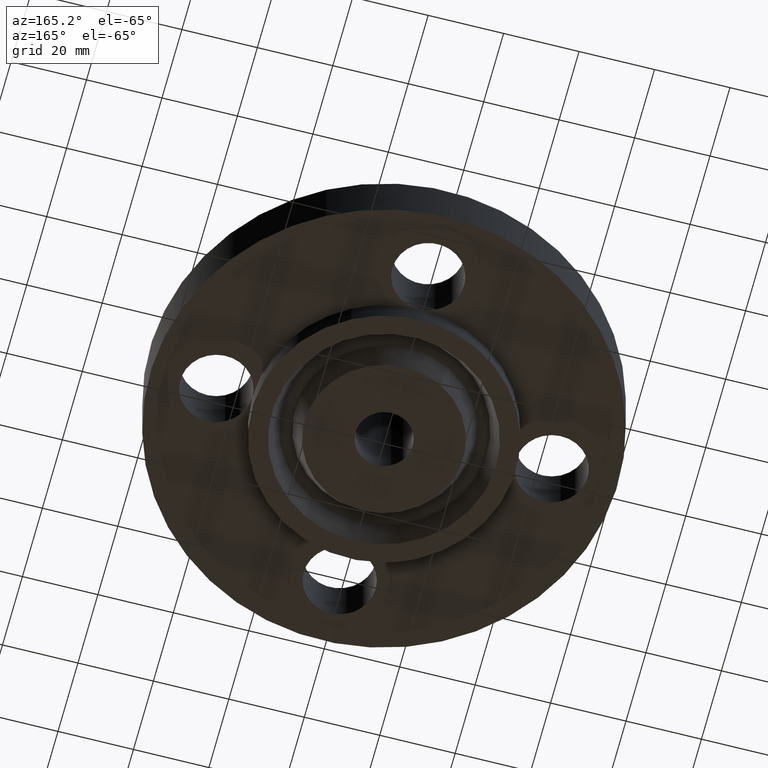
[diagram: clean part render]
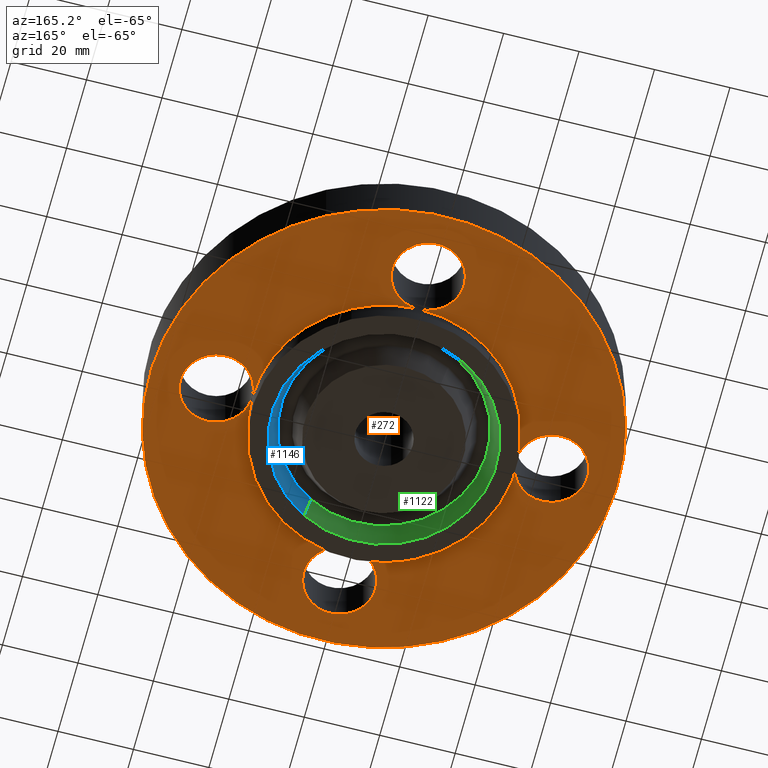
[diagram: same view with three faces highlighted in distinct colors, each labeled with its STEP entity id]
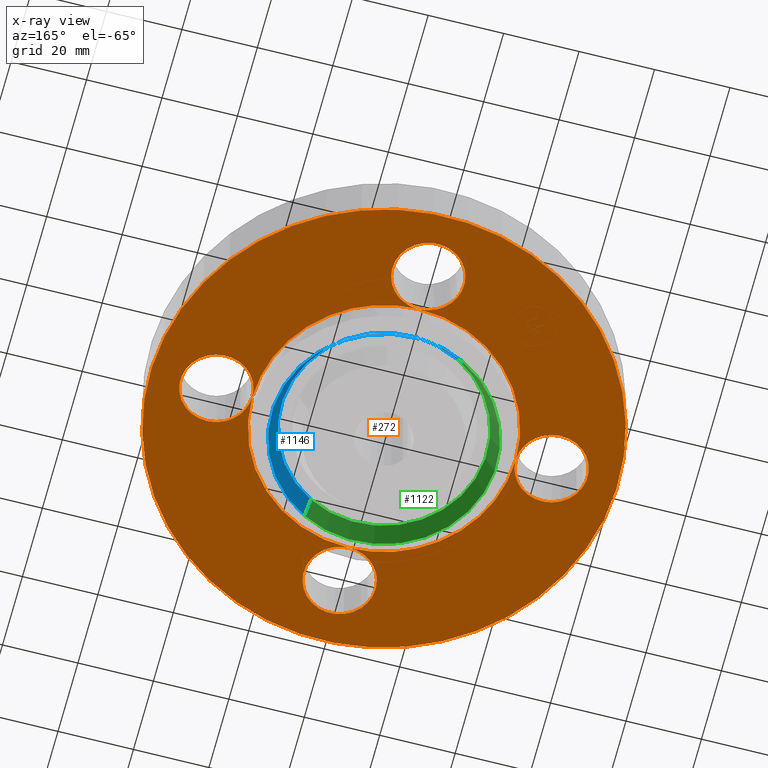
[diagram: x-ray of the same camera — body ghosted, the three highlighted faces saturated]
A machine part, auxiliary view with three faces highlighted in distinct colors.
The next image is the same camera in x-ray (body ghosted, the three faces saturated) — at least one of them is partly hidden behind the body in this view.
Their STEP definitions:

[orange] entity #272 — the highlighted planar face has unit normal (0, 0, -1).
#51=AXIS2_PLACEMENT_3D('Circle Axis2P3D',#49,#50,$) ;
#102=AXIS2_PLACEMENT_3D('Circle Axis2P3D',#100,#101,$) ;
#109=AXIS2_PLACEMENT_3D('Circle Axis2P3D',#107,#108,$) ;
#135=AXIS2_PLACEMENT_3D('Plane Axis2P3D',#132,#133,#134) ;
#139=AXIS2_PLACEMENT_3D('Circle Axis2P3D',#137,#138,$) ;
#148=AXIS2_PLACEMENT_3D('Circle Axis2P3D',#146,#147,$) ;
#157=AXIS2_PLACEMENT_3D('Circle Axis2P3D',#155,#156,$) ;
#166=AXIS2_PLACEMENT_3D('Circle Axis2P3D',#164,#165,$) ;
#173=AXIS2_PLACEMENT_3D('Circle Axis2P3D',#171,#172,$) ;
#178=AXIS2_PLACEMENT_3D('Circle Axis2P3D',#176,#177,$) ;
#185=AXIS2_PLACEMENT_3D('Circle Axis2P3D',#183,#184,$) ;
#192=AXIS2_PLACEMENT_3D('Circle Axis2P3D',#190,#191,$) ;
#199=AXIS2_PLACEMENT_3D('Circle Axis2P3D',#197,#198,$) ;
#204=AXIS2_PLACEMENT_3D('Circle Axis2P3D',#202,#203,$) ;
#211=AXIS2_PLACEMENT_3D('Circle Axis2P3D',#209,#210,$) ;
#216=AXIS2_PLACEMENT_3D('Circle Axis2P3D',#214,#215,$) ;
#223=AXIS2_PLACEMENT_3D('Circle Axis2P3D',#221,#222,$) ;
#230=AXIS2_PLACEMENT_3D('Circle Axis2P3D',#228,#229,$) ;
#237=AXIS2_PLACEMENT_3D('Circle Axis2P3D',#235,#236,$) ;
#242=AXIS2_PLACEMENT_3D('Circle Axis2P3D',#240,#241,$) ;
#249=AXIS2_PLACEMENT_3D('Circle Axis2P3D',#247,#248,$) ;
#44=CARTESIAN_POINT('Vertex',(-0.32909346071,1.92978457699,0.)) ;
#49=CARTESIAN_POINT('Axis2P3D Location',(0.,1.75000000001,0.)) ;
#53=CARTESIAN_POINT('Vertex',(0.32909346071,1.57021542303,2.55543617763E-013)) ;
#100=CARTESIAN_POINT('Axis2P3D Location',(0.,1.75000000001,2.55543617763E-013)) ;
#104=CARTESIAN_POINT('Vertex',(-5.45495407375E-015,1.37500000001,2.55543617763E-013)) ;
#107=CARTESIAN_POINT('Axis2P3D Location',(0.,1.75000000001,2.55543617763E-013)) ;
#132=CARTESIAN_POINT('Axis2P3D Location',(0.,1.37500000001,0.)) ;
#137=CARTESIAN_POINT('Axis2P3D Location',(-8.39223703654E-016,-1.93331964611E-011,0.)) ;
#141=CARTESIAN_POINT('Vertex',(-1.1697983142,-2.14130145102,-3.57865967831E-011)) ;
#143=CARTESIAN_POINT('Vertex',(1.1697983142,2.14130145102,-3.57865967831E-011)) ;
#146=CARTESIAN_POINT('Axis2P3D Location',(8.39223703654E-016,-1.93326369786E-011,0.)) ;
#155=CARTESIAN_POINT('Axis2P3D Location',(4.51559699519E-011,-1.75000000002,0.)) ;
#159=CARTESIAN_POINT('Vertex',(-0.329093460698,-1.57021542302,0.)) ;
#161=CARTESIAN_POINT('Vertex',(6.99353086378E-016,-1.37500000001,-3.57865967831E-011)) ;
#164=CARTESIAN_POINT('Axis2P3D Location',(1.74838271595E-017,-1.74999999999,0.)) ;
#168=CARTESIAN_POINT('Vertex',(0.329093460698,-1.92978457696,0.)) ;
#171=CARTESIAN_POINT('Axis2P3D Location',(-1.8883967006E-011,-1.74999999998,0.)) ;
#176=CARTESIAN_POINT('Axis2P3D Location',(1.27493186612E-010,-7.34938968825E-011,0.)) ;
#180=CARTESIAN_POINT('Vertex',(1.37500000001,-5.59482469102E-016,-3.57865967831E-011)) ;
#183=CARTESIAN_POINT('Axis2P3D Location',(1.7500000002,6.02789209623E-011,0.)) ;
#187=CARTESIAN_POINT('Vertex',(1.570215423,-0.329093460717,0.)) ;
#190=CARTESIAN_POINT('Axis2P3D Location',(1.75000000002,-2.63320424083E-011,0.)) ;
#194=CARTESIAN_POINT('Vertex',(1.92978457702,0.329093460678,0.)) ;
#197=CARTESIAN_POINT('Axis2P3D Location',(1.75,2.74764637989E-011,0.)) ;
#202=CARTESIAN_POINT('Axis2P3D Location',(-1.36906898766E-010,-8.43279951555E-011,0.)) ;
#206=CARTESIAN_POINT('Vertex',(0.659210115586,1.20667602261,-3.57865967831E-011)) ;
#209=CARTESIAN_POINT('Axis2P3D Location',(-3.10233798406E-010,-1.35056326577E-009,0.)) ;
#214=CARTESIAN_POINT('Axis2P3D Location',(-2.30758544381E-012,-1.70256110173E-011,0.)) ;
#218=CARTESIAN_POINT('Vertex',(-1.37500000001,3.49676543189E-016,-3.57865967831E-011)) ;
#221=CARTESIAN_POINT('Axis2P3D Location',(-1.74999999997,3.74584702713E-011,0.)) ;
#225=CARTESIAN_POINT('Vertex',(-1.570215423,0.329093460678,0.)) ;
#228=CARTESIAN_POINT('Axis2P3D Location',(-1.75000000002,-1.23337910314E-011,0.)) ;
#232=CARTESIAN_POINT('Vertex',(-1.92978457702,-0.329093460717,0.)) ;
#235=CARTESIAN_POINT('Axis2P3D Location',(-1.75,-6.61422972385E-011,0.)) ;
#240=CARTESIAN_POINT('Axis2P3D Location',(1.36907318378E-010,1.18995207388E-010,0.)) ;
#244=CARTESIAN_POINT('Vertex',(-0.659210115586,-1.20667602261,-3.57865967831E-011)) ;
#247=CARTESIAN_POINT('Axis2P3D Location',(-2.55224747723E-010,-8.29285616555E-010,0.)) ;
#50=DIRECTION('Axis2P3D Direction',(0.,-0.,-0.0393700787402)) ;
#101=DIRECTION('Axis2P3D Direction',(0.,-0.,-0.0393700787402)) ;
#108=DIRECTION('Axis2P3D Direction',(0.,-0.,-0.0393700787402)) ;
#133=DIRECTION('Axis2P3D Direction',(0.,0.,-0.0393700787402)) ;
#134=DIRECTION('Axis2P3D XDirection',(0.0393700787402,0.,0.)) ;
#138=DIRECTION('Axis2P3D Direction',(0.,0.,-0.0393700787402)) ;
#147=DIRECTION('Axis2P3D Direction',(0.,0.,-0.0393700787402)) ;
#156=DIRECTION('Axis2P3D Direction',(0.,0.,-0.0393700787402)) ;
#165=DIRECTION('Axis2P3D Direction',(0.,0.,-0.0393700787402)) ;
#172=DIRECTION('Axis2P3D Direction',(0.,0.,-0.0393700787402)) ;
#177=DIRECTION('Axis2P3D Direction',(0.,0.,-0.0393700787402)) ;
#184=DIRECTION('Axis2P3D Direction',(0.,0.,-0.0393700787402)) ;
#191=DIRECTION('Axis2P3D Direction',(0.,0.,-0.0393700787402)) ;
#198=DIRECTION('Axis2P3D Direction',(0.,0.,-0.0393700787402)) ;
#203=DIRECTION('Axis2P3D Direction',(0.,0.,-0.0393700787402)) ;
#210=DIRECTION('Axis2P3D Direction',(0.,0.,-0.0393700787402)) ;
#215=DIRECTION('Axis2P3D Direction',(0.,0.,-0.0393700787402)) ;
#222=DIRECTION('Axis2P3D Direction',(0.,0.,-0.0393700787402)) ;
#229=DIRECTION('Axis2P3D Direction',(0.,0.,-0.0393700787402)) ;
#236=DIRECTION('Axis2P3D Direction',(0.,0.,-0.0393700787402)) ;
#241=DIRECTION('Axis2P3D Direction',(0.,0.,-0.0393700787402)) ;
#248=DIRECTION('Axis2P3D Direction',(0.,0.,-0.0393700787402)) ;
#152=ORIENTED_EDGE('',*,*,#145,.T.) ;
#153=ORIENTED_EDGE('',*,*,#150,.T.) ;
#253=ORIENTED_EDGE('',*,*,#163,.F.) ;
#254=ORIENTED_EDGE('',*,*,#170,.F.) ;
#255=ORIENTED_EDGE('',*,*,#175,.F.) ;
#256=ORIENTED_EDGE('',*,*,#182,.F.) ;
#257=ORIENTED_EDGE('',*,*,#189,.F.) ;
#258=ORIENTED_EDGE('',*,*,#196,.F.) ;
#259=ORIENTED_EDGE('',*,*,#201,.F.) ;
#260=ORIENTED_EDGE('',*,*,#208,.F.) ;
#261=ORIENTED_EDGE('',*,*,#213,.F.) ;
#262=ORIENTED_EDGE('',*,*,#106,.F.) ;
#263=ORIENTED_EDGE('',*,*,#55,.F.) ;
#264=ORIENTED_EDGE('',*,*,#111,.F.) ;
#265=ORIENTED_EDGE('',*,*,#220,.F.) ;
#266=ORIENTED_EDGE('',*,*,#227,.F.) ;
#267=ORIENTED_EDGE('',*,*,#234,.F.) ;
#268=ORIENTED_EDGE('',*,*,#239,.F.) ;
#269=ORIENTED_EDGE('',*,*,#246,.F.) ;
#270=ORIENTED_EDGE('',*,*,#251,.F.) ;
#271=FACE_BOUND('',#252,.T.) ;
#272=ADVANCED_FACE('PartBody',(#154,#271),#136,.T.) ;
#52=CIRCLE('generated circle',#51,0.375000000001) ;
#103=CIRCLE('generated circle',#102,0.375000000001) ;
#110=CIRCLE('generated circle',#109,0.375000000001) ;
#140=CIRCLE('generated circle',#139,2.44) ;
#149=CIRCLE('generated circle',#148,2.44) ;
#158=CIRCLE('generated circle',#157,0.37500000004) ;
#167=CIRCLE('generated circle',#166,0.374999999988) ;
#174=CIRCLE('generated circle',#173,0.375000000008) ;
#179=CIRCLE('generated circle',#178,1.3749999999) ;
#186=CIRCLE('generated circle',#185,0.375000000166) ;
#193=CIRCLE('generated circle',#192,0.375000000006) ;
#200=CIRCLE('generated circle',#199,0.374999999969) ;
#205=CIRCLE('generated circle',#204,1.37500000017) ;
#212=CIRCLE('generated circle',#211,1.37500000136) ;
#217=CIRCLE('generated circle',#216,1.37500000003) ;
#224=CIRCLE('generated circle',#223,0.374999999936) ;
#231=CIRCLE('generated circle',#230,0.375000000006) ;
#238=CIRCLE('generated circle',#237,0.374999999969) ;
#243=CIRCLE('generated circle',#242,1.37500000017) ;
#250=CIRCLE('generated circle',#249,1.37499999915) ;
#55=EDGE_CURVE('',#45,#54,#52,.T.) ;
#106=EDGE_CURVE('',#54,#105,#103,.T.) ;
#111=EDGE_CURVE('',#105,#45,#110,.T.) ;
#145=EDGE_CURVE('',#142,#144,#140,.T.) ;
#150=EDGE_CURVE('',#144,#142,#149,.T.) ;
#163=EDGE_CURVE('',#160,#162,#158,.T.) ;
#170=EDGE_CURVE('',#169,#160,#167,.T.) ;
#175=EDGE_CURVE('',#162,#169,#174,.T.) ;
#182=EDGE_CURVE('',#181,#162,#179,.T.) ;
#189=EDGE_CURVE('',#188,#181,#186,.T.) ;
#196=EDGE_CURVE('',#195,#188,#193,.T.) ;
#201=EDGE_CURVE('',#181,#195,#200,.T.) ;
#208=EDGE_CURVE('',#207,#181,#205,.T.) ;
#213=EDGE_CURVE('',#105,#207,#212,.T.) ;
#220=EDGE_CURVE('',#219,#105,#217,.T.) ;
#227=EDGE_CURVE('',#226,#219,#224,.T.) ;
#234=EDGE_CURVE('',#233,#226,#231,.T.) ;
#239=EDGE_CURVE('',#219,#233,#238,.T.) ;
#246=EDGE_CURVE('',#245,#219,#243,.T.) ;
#251=EDGE_CURVE('',#162,#245,#250,.T.) ;
#151=EDGE_LOOP('',(#152,#153)) ;
#252=EDGE_LOOP('',(#253,#254,#255,#256,#257,#258,#259,#260,#261,#262,#263,#264,#265,#266,#267,#268,#269,#270)) ;
#154=FACE_OUTER_BOUND('',#151,.T.) ;
#136=PLANE('',#135) ;
#45=VERTEX_POINT('',#44) ;
#54=VERTEX_POINT('',#53) ;
#105=VERTEX_POINT('',#104) ;
#142=VERTEX_POINT('',#141) ;
#144=VERTEX_POINT('',#143) ;
#160=VERTEX_POINT('',#159) ;
#162=VERTEX_POINT('',#161) ;
#169=VERTEX_POINT('',#168) ;
#181=VERTEX_POINT('',#180) ;
#188=VERTEX_POINT('',#187) ;
#195=VERTEX_POINT('',#194) ;
#207=VERTEX_POINT('',#206) ;
#219=VERTEX_POINT('',#218) ;
#226=VERTEX_POINT('',#225) ;
#233=VERTEX_POINT('',#232) ;
#245=VERTEX_POINT('',#244) ;

[blue] entity #1146 — the highlighted conical surface has half-angle 23 deg.
#836=AXIS2_PLACEMENT_3D('Circle Axis2P3D',#834,#835,$) ;
#1133=AXIS2_PLACEMENT_3D('Cone Axis2P3D',#1130,#1131,#1132) ;
#1137=AXIS2_PLACEMENT_3D('Circle Axis2P3D',#1135,#1136,$) ;
#829=CARTESIAN_POINT('Vertex',(0.561886731257,-1.02852676255,-0.250000000001)) ;
#831=CARTESIAN_POINT('Vertex',(-0.561886731257,1.02852676253,-0.250000000001)) ;
#834=CARTESIAN_POINT('Axis2P3D Location',(-3.49676543189E-017,-9.442490534E-012,-0.250000000001)) ;
#1097=CARTESIAN_POINT('Line Origine',(-0.538370547572,0.985480677062,-0.134443667512)) ;
#1101=CARTESIAN_POINT('Vertex',(-0.514854363896,0.942434591581,-0.0188873350186)) ;
#1108=CARTESIAN_POINT('Vertex',(0.514854363896,-0.942434591581,-0.0188873350179)) ;
#1111=CARTESIAN_POINT('Line Origine',(0.538370547572,-0.985480677062,-0.134443667512)) ;
#1130=CARTESIAN_POINT('Axis2P3D Location',(0.,0.,-0.0188873350169)) ;
#1135=CARTESIAN_POINT('Axis2P3D Location',(0.,0.,-0.0188873350169)) ;
#835=DIRECTION('Axis2P3D Direction',(0.,0.,-0.0393700787402)) ;
#1098=DIRECTION('Vector Direction',(-0.00737505833566,0.0134999537303,-0.0362403485611)) ;
#1112=DIRECTION('Vector Direction',(0.00737505833566,-0.0134999537303,-0.0362403485611)) ;
#1131=DIRECTION('Axis2P3D Direction',(-0.,-0.,-0.0393700787402)) ;
#1132=DIRECTION('Axis2P3D XDirection',(-0.0188750212049,0.0345504945626,0.)) ;
#1136=DIRECTION('Axis2P3D Direction',(-0.,0.,-0.0393700787402)) ;
#1099=VECTOR('Line Direction',#1098,0.0393700787402) ;
#1113=VECTOR('Line Direction',#1112,0.0393700787402) ;
#1141=ORIENTED_EDGE('',*,*,#838,.T.) ;
#1142=ORIENTED_EDGE('',*,*,#1115,.T.) ;
#1143=ORIENTED_EDGE('',*,*,#1139,.T.) ;
#1144=ORIENTED_EDGE('',*,*,#1103,.F.) ;
#1146=ADVANCED_FACE('PartBody',(#1145),#1134,.F.) ;
#837=CIRCLE('generated circle',#836,1.17200000001) ;
#1138=CIRCLE('generated circle',#1137,1.07389849401) ;
#1134=CONICAL_SURFACE('Cone',#1133,1.07389849401,0.401425727959) ;
#838=EDGE_CURVE('',#832,#830,#837,.T.) ;
#1103=EDGE_CURVE('',#832,#1102,#1100,.F.) ;
#1115=EDGE_CURVE('',#830,#1109,#1114,.F.) ;
#1139=EDGE_CURVE('',#1109,#1102,#1138,.F.) ;
#1140=EDGE_LOOP('',(#1141,#1142,#1143,#1144)) ;
#1145=FACE_OUTER_BOUND('',#1140,.T.) ;
#1100=LINE('Line',#1097,#1099) ;
#1114=LINE('Line',#1111,#1113) ;
#830=VERTEX_POINT('',#829) ;
#832=VERTEX_POINT('',#831) ;
#1102=VERTEX_POINT('',#1101) ;
#1109=VERTEX_POINT('',#1108) ;

[green] entity #1122 — the highlighted conical surface has half-angle 23 deg.
#827=AXIS2_PLACEMENT_3D('Circle Axis2P3D',#825,#826,$) ;
#1095=AXIS2_PLACEMENT_3D('Cone Axis2P3D',#1092,#1093,#1094) ;
#1106=AXIS2_PLACEMENT_3D('Circle Axis2P3D',#1104,#1105,$) ;
#825=CARTESIAN_POINT('Axis2P3D Location',(3.49676543189E-017,-9.442490534E-012,-0.250000000001)) ;
#829=CARTESIAN_POINT('Vertex',(0.561886731257,-1.02852676255,-0.250000000001)) ;
#831=CARTESIAN_POINT('Vertex',(-0.561886731257,1.02852676253,-0.250000000001)) ;
#1092=CARTESIAN_POINT('Axis2P3D Location',(0.,0.,-0.0188873350169)) ;
#1097=CARTESIAN_POINT('Line Origine',(-0.538370547572,0.985480677062,-0.134443667512)) ;
#1101=CARTESIAN_POINT('Vertex',(-0.514854363896,0.942434591581,-0.0188873350186)) ;
#1104=CARTESIAN_POINT('Axis2P3D Location',(0.,0.,-0.0188873350169)) ;
#1108=CARTESIAN_POINT('Vertex',(0.514854363896,-0.942434591581,-0.0188873350179)) ;
#1111=CARTESIAN_POINT('Line Origine',(0.538370547572,-0.985480677062,-0.134443667512)) ;
#826=DIRECTION('Axis2P3D Direction',(0.,0.,-0.0393700787402)) ;
#1093=DIRECTION('Axis2P3D Direction',(-0.,-0.,-0.0393700787402)) ;
#1094=DIRECTION('Axis2P3D XDirection',(0.0188750212049,-0.0345504945626,0.)) ;
#1098=DIRECTION('Vector Direction',(-0.00737505833566,0.0134999537303,-0.0362403485611)) ;
#1105=DIRECTION('Axis2P3D Direction',(-0.,0.,-0.0393700787402)) ;
#1112=DIRECTION('Vector Direction',(0.00737505833566,-0.0134999537303,-0.0362403485611)) ;
#1099=VECTOR('Line Direction',#1098,0.0393700787402) ;
#1113=VECTOR('Line Direction',#1112,0.0393700787402) ;
#1117=ORIENTED_EDGE('',*,*,#833,.T.) ;
#1118=ORIENTED_EDGE('',*,*,#1103,.T.) ;
#1119=ORIENTED_EDGE('',*,*,#1110,.T.) ;
#1120=ORIENTED_EDGE('',*,*,#1115,.F.) ;
#1122=ADVANCED_FACE('PartBody',(#1121),#1096,.F.) ;
#828=CIRCLE('generated circle',#827,1.17200000001) ;
#1107=CIRCLE('generated circle',#1106,1.07389849401) ;
#1096=CONICAL_SURFACE('Cone',#1095,1.07389849401,0.401425727959) ;
#833=EDGE_CURVE('',#830,#832,#828,.T.) ;
#1103=EDGE_CURVE('',#832,#1102,#1100,.F.) ;
#1110=EDGE_CURVE('',#1102,#1109,#1107,.F.) ;
#1115=EDGE_CURVE('',#830,#1109,#1114,.F.) ;
#1116=EDGE_LOOP('',(#1117,#1118,#1119,#1120)) ;
#1121=FACE_OUTER_BOUND('',#1116,.T.) ;
#1100=LINE('Line',#1097,#1099) ;
#1114=LINE('Line',#1111,#1113) ;
#830=VERTEX_POINT('',#829) ;
#832=VERTEX_POINT('',#831) ;
#1102=VERTEX_POINT('',#1101) ;
#1109=VERTEX_POINT('',#1108) ;